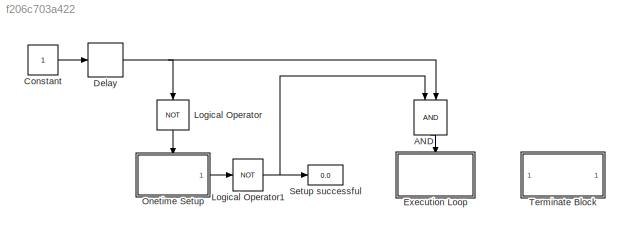
MODEL slx_f206c703a422
KIND model
CONFIG AbsTol = auto
CONFIG EnableMultiTasking = off
CONFIG FixedStep = 0.01
CONFIG MaxStep = auto
CONFIG MinStep = auto
CONFIG RelTol = 1e-3
CONFIG SampleTimeConstraint = Unconstrained
CONFIG Solver = FixedStepAuto
CONFIG SolverName = FixedStepAuto
CONFIG StartTime = 0.0
CONFIG StopTime = inf
BLOCK [Logic] AND
  AllPortsSameDT = off
  OutDataTypeStr = boolean
  Ports = [2, 1]
BLOCK [Constant] Constant
BLOCK [Delay] Delay
  DelayLength = 1
  InputPortMap = u0
  Ports = [1, 1]
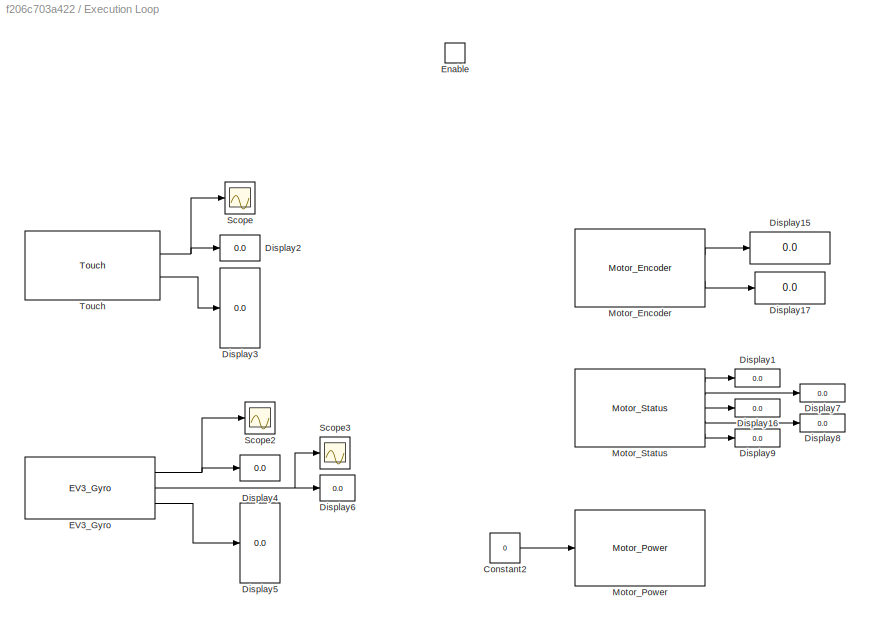
BLOCK [SubSystem] Execution Loop
  Ports = [0, 0, 1]
  RequestExecContextInheritance = off
BLOCK [Constant] Execution Loop/Constant2
  Commented = on
  OutDataTypeStr = int8
  Value = 0
BLOCK [Display] Execution Loop/Display1
  Commented = on
  Decimation = 1
  Ports = [1]
BLOCK [Display] Execution Loop/Display15
  Commented = on
  Decimation = 1
  Ports = [1]
BLOCK [Display] Execution Loop/Display16
  Commented = on
  Decimation = 1
  Ports = [1]
BLOCK [Display] Execution Loop/Display17
  Commented = on
  Decimation = 1
  Ports = [1]
BLOCK [Display] Execution Loop/Display2
  Commented = on
  Decimation = 1
  Ports = [1]
BLOCK [Display] Execution Loop/Display3
  Commented = on
  Decimation = 1
  Ports = [1]
BLOCK [Display] Execution Loop/Display4
  Commented = on
  Decimation = 1
  Ports = [1]
BLOCK [Display] Execution Loop/Display5
  Commented = on
  Decimation = 1
  Ports = [1]
BLOCK [Display] Execution Loop/Display6
  Commented = on
  Decimation = 1
  Ports = [1]
BLOCK [Display] Execution Loop/Display7
  Commented = on
  Decimation = 1
  Ports = [1]
BLOCK [Display] Execution Loop/Display8
  Commented = on
  Decimation = 1
  Ports = [1]
BLOCK [Display] Execution Loop/Display9
  Commented = on
  Decimation = 1
  Ports = [1]
BLOCK [Reference] Execution Loop/EV3_Gyro  REF=BrickPi/EV3_Gyro
  Commented = on
  Ports = [0, 3]
  SourceBlock = BrickPi/EV3_Gyro
BLOCK [EnablePort] Execution Loop/Enable
  Ports = []
BLOCK [Reference] Execution Loop/Motor_Encoder  REF=BrickPi/Motor_Encoder
  Commented = on
  Ports = [1, 2]
  SourceBlock = BrickPi/Motor_Encoder
BLOCK [Reference] Execution Loop/Motor_Power  REF=BrickPi/Motor_Power
  Commented = on
  Ports = [1]
  SourceBlock = BrickPi/Motor_Power
BLOCK [Reference] Execution Loop/Motor_Status  REF=BrickPi/Motor_Status
  Commented = on
  Ports = [1, 5]
  SourceBlock = BrickPi/Motor_Status
BLOCK [Scope] Execution Loop/Scope
  Commented = on
  Floating = off
  NumInputPorts = 1
  Ports = [1]
  ScopeSpecificationString = Simulink.scopes.TimeScopeBlockCfg('CurrentConfiguration', extmgr.ConfigurationSet(extmgr.Configuration('Core','General UI',true),extmgr.Configuration('Core','Source UI',true),extmgr.Configuration('Sources','WiredSimulink',true),extmgr.Configuration('Visuals','Time Domain',true,'SerializedDisplays',{struct('MinYLimReal','-0.02425','MaxYLimReal','1.01742','YLabelReal','','MinYLimMag','0.00000','MaxY...<+1375ch>
BLOCK [Scope] Execution Loop/Scope2
  Commented = on
  Floating = off
  NumInputPorts = 1
  Ports = [1]
  ScopeSpecificationString = Simulink.scopes.TimeScopeBlockCfg('CurrentConfiguration', extmgr.ConfigurationSet(extmgr.Configuration('Core','General UI',true),extmgr.Configuration('Core','Source UI',true),extmgr.Configuration('Sources','WiredSimulink',true,'DataLoggingVariableName','ScopeData1'),extmgr.Configuration('Visuals','Time Domain',true,'SerializedDisplays',{struct('MinYLimReal','-37.375','MaxYLimReal','16.375','YLabel...<+1465ch>
BLOCK [Scope] Execution Loop/Scope3
  Commented = on
  Floating = off
  NumInputPorts = 1
  Ports = [1]
  ScopeSpecificationString = Simulink.scopes.TimeScopeBlockCfg('CurrentConfiguration', extmgr.ConfigurationSet(extmgr.Configuration('Core','General UI',true),extmgr.Configuration('Core','Source UI',true),extmgr.Configuration('Sources','WiredSimulink',true,'DataLoggingVariableName','ScopeData2'),extmgr.Configuration('Visuals','Time Domain',true,'SerializedDisplays',{struct('MinYLimReal','-202.00000','MaxYLimReal','38.00000','Y...<+1483ch>
BLOCK [Reference] Execution Loop/Touch  REF=BrickPi/Touch
  Commented = on
  Ports = [0, 2]
  SourceBlock = BrickPi/Touch
BLOCK [Logic] Logical Operator
  AllPortsSameDT = off
  Operator = NOT
  OutDataTypeStr = boolean
  Ports = [1, 1]
BLOCK [Logic] Logical Operator1
  AllPortsSameDT = off
  Operator = NOT
  OutDataTypeStr = boolean
  Ports = [1, 1]
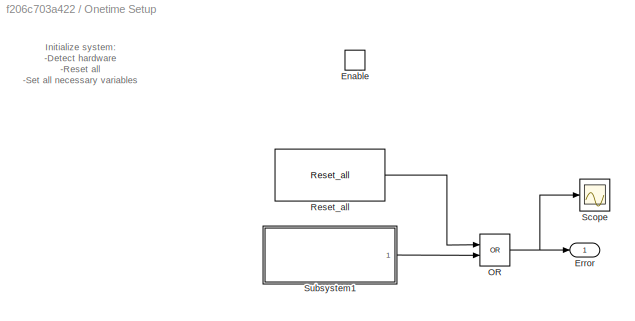
BLOCK [SubSystem] Onetime Setup
  Ports = [0, 1, 1]
  RequestExecContextInheritance = off
BLOCK [EnablePort] Onetime Setup/Enable
  Ports = []
BLOCK [Outport] Onetime Setup/Error
  IconDisplay = Port number
  InitialOutput = [1]
BLOCK [Logic] Onetime Setup/OR
  AllPortsSameDT = off
  IconShape = distinctive
  Operator = OR
  OutDataTypeStr = boolean
  Ports = [2, 1]
BLOCK [Reference] Onetime Setup/Reset_all  REF=BrickPi/Reset_all
  Ports = [0, 1]
  SourceBlock = BrickPi/Reset_all
BLOCK [Scope] Onetime Setup/Scope
  Floating = off
  NumInputPorts = 1
  Ports = [1]
  ScopeSpecificationString = Simulink.scopes.TimeScopeBlockCfg('CurrentConfiguration', extmgr.ConfigurationSet(extmgr.Configuration('Core','General UI',true),extmgr.Configuration('Core','Source UI',true),extmgr.Configuration('Sources','WiredSimulink',true,'DataLoggingVariableName','ScopeData2'),extmgr.Configuration('Visuals','Time Domain',true,'SerializedDisplays',{struct('MinYLimReal','-1.00000','MaxYLimReal','1.00000','YLab...<+1361ch>
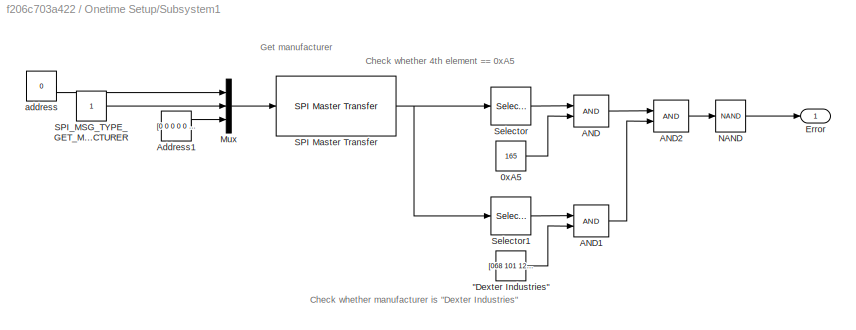
BLOCK [SubSystem] Onetime Setup/Subsystem1
  Ports = [0, 1]
  Priority = 10
  RequestExecContextInheritance = off
BLOCK [Constant] Onetime Setup/Subsystem1/"Dexter Industries"
  OutDataTypeStr = uint8
  Value = [068 101 120 116 101 114 032 073 110 100 117 115 116 114 105 101 115]
BLOCK [Constant] Onetime Setup/Subsystem1/0xA5
  OutDataTypeStr = uint8
  Value = 165
BLOCK [Logic] Onetime Setup/Subsystem1/AND
  AllPortsSameDT = off
  IconShape = distinctive
  OutDataTypeStr = boolean
  Ports = [2, 1]
BLOCK [Logic] Onetime Setup/Subsystem1/AND1
  AllPortsSameDT = off
  IconShape = distinctive
  OutDataTypeStr = boolean
  Ports = [2, 1]
BLOCK [Logic] Onetime Setup/Subsystem1/AND2
  AllPortsSameDT = off
  IconShape = distinctive
  OutDataTypeStr = boolean
  Ports = [2, 1]
BLOCK [Constant] Onetime Setup/Subsystem1/Address1
  OutDataTypeStr = uint8
  Value = [0 0 0 0 0 0 0 0 0 0 0 0 0 0 0 0 0 0 0]
BLOCK [Outport] Onetime Setup/Subsystem1/Error
  IconDisplay = Port number
BLOCK [Mux] Onetime Setup/Subsystem1/Mux
  DisplayOption = bar
  Inputs = 3
  Ports = [3, 1]
BLOCK [Logic] Onetime Setup/Subsystem1/NAND
  AllPortsSameDT = off
  IconShape = distinctive
  Inputs = 1
  Operator = NAND
  OutDataTypeStr = boolean
  Ports = [1, 1]
BLOCK [Reference] Onetime Setup/Subsystem1/SPI Master Transfer  REF=raspberrypilib/SPI Master Transfer
  Ports = [1, 1]
  SourceBlock = raspberrypilib/SPI Master Transfer
  SourceProductBaseCode = RASPPI
  SourceProductName = Simulink Support Package for Raspberry Pi Hardware
  SourceType = codertarget.raspi.internal.SPIMasterTransfer
BLOCK [Constant] Onetime Setup/Subsystem1/SPI_MSG_TYPE_ GET_MANUFACTURER
  OutDataTypeStr = uint8
BLOCK [Selector] Onetime Setup/Subsystem1/Selector
  IndexOptions = Index vector (dialog)
  Indices = [4]
  InputPortWidth = 21
  OutputSizes = 1
  Ports = [1, 1]
BLOCK [Selector] Onetime Setup/Subsystem1/Selector1
  IndexOptions = Index vector (dialog)
  Indices = [5:1:21]
  InputPortWidth = 21
  OutputSizes = 1
  Ports = [1, 1]
BLOCK [Constant] Onetime Setup/Subsystem1/address
  OutDataTypeStr = uint8
  Value = 0
BLOCK [Display] Setup successful
  Decimation = 1
  Ports = [1]
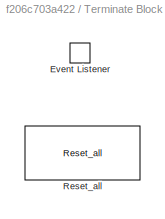
BLOCK [SubSystem] Terminate Block
  Ports = []
  RequestExecContextInheritance = off
  TreatAsAtomicUnit = on
BLOCK [EventListener] Terminate Block/Event Listener
  DisableCoverage = on
  EventName = reset
  EventType = Terminate
BLOCK [Reference] Terminate Block/Reset_all  REF=BrickPi/Reset_all
  Ports = [0, 1]
  SourceBlock = BrickPi/Reset_all
ANNOTATION Onetime Setup: Initialize system: -Detect hardware -Reset all -Set all necessary variables
ANNOTATION Onetime Setup/Subsystem1: Check whether 4th element == 0xA5
ANNOTATION Onetime Setup/Subsystem1: Check whether manufacturer is "Dexter Industries"
ANNOTATION Onetime Setup/Subsystem1: Get manufacturer
LINE AND:1 -> Execution Loop:enable
LINE Constant:1 -> Delay:1
NET Delay:1 -> AND:2, Logical Operator:1
LINE Execution Loop/Constant2:1 -> Execution Loop/Motor_Power:1
NET Execution Loop/EV3_Gyro:1 -> Execution Loop/Display4:1, Execution Loop/Scope2:1
NET Execution Loop/EV3_Gyro:2 -> Execution Loop/Display6:1, Execution Loop/Scope3:1
LINE Execution Loop/EV3_Gyro:3 -> Execution Loop/Display5:1
LINE Execution Loop/Motor_Encoder:1 -> Execution Loop/Display15:1
LINE Execution Loop/Motor_Encoder:2 -> Execution Loop/Display17:1
LINE Execution Loop/Motor_Status:1 -> Execution Loop/Display1:1
LINE Execution Loop/Motor_Status:2 -> Execution Loop/Display7:1
LINE Execution Loop/Motor_Status:3 -> Execution Loop/Display16:1
LINE Execution Loop/Motor_Status:4 -> Execution Loop/Display8:1
LINE Execution Loop/Motor_Status:5 -> Execution Loop/Display9:1
NET Execution Loop/Touch:1 -> Execution Loop/Display2:1, Execution Loop/Scope:1
LINE Execution Loop/Touch:2 -> Execution Loop/Display3:1
NET Logical Operator1:1 -> AND:1, Setup successful:1
LINE Logical Operator:1 -> Onetime Setup:enable
NET Onetime Setup/OR:1 -> Onetime Setup/Error:1, Onetime Setup/Scope:1
LINE Onetime Setup/Reset_all:1 -> Onetime Setup/OR:1
LINE Onetime Setup/Subsystem1/"Dexter Industries":1 -> Onetime Setup/Subsystem1/AND1:2
LINE Onetime Setup/Subsystem1/0xA5:1 -> Onetime Setup/Subsystem1/AND:2
LINE Onetime Setup/Subsystem1/AND1:1 -> Onetime Setup/Subsystem1/AND2:2
LINE Onetime Setup/Subsystem1/AND2:1 -> Onetime Setup/Subsystem1/NAND:1
LINE Onetime Setup/Subsystem1/AND:1 -> Onetime Setup/Subsystem1/AND2:1
LINE Onetime Setup/Subsystem1/Address1:1 -> Onetime Setup/Subsystem1/Mux:3
LINE Onetime Setup/Subsystem1/Mux:1 -> Onetime Setup/Subsystem1/SPI Master Transfer:1
LINE Onetime Setup/Subsystem1/NAND:1 -> Onetime Setup/Subsystem1/Error:1
NET Onetime Setup/Subsystem1/SPI Master Transfer:1 -> Onetime Setup/Subsystem1/Selector1:1, Onetime Setup/Subsystem1/Selector:1
LINE Onetime Setup/Subsystem1/SPI_MSG_TYPE_ GET_MANUFACTURER:1 -> Onetime Setup/Subsystem1/Mux:2
LINE Onetime Setup/Subsystem1/Selector1:1 -> Onetime Setup/Subsystem1/AND1:1
LINE Onetime Setup/Subsystem1/Selector:1 -> Onetime Setup/Subsystem1/AND:1
LINE Onetime Setup/Subsystem1/address:1 -> Onetime Setup/Subsystem1/Mux:1
LINE Onetime Setup/Subsystem1:1 -> Onetime Setup/OR:2
LINE Onetime Setup:1 -> Logical Operator1:1
note: NET lines group one-source signal fan-out (src -> all destinations, sorted); 1:1 wires keep LINE
